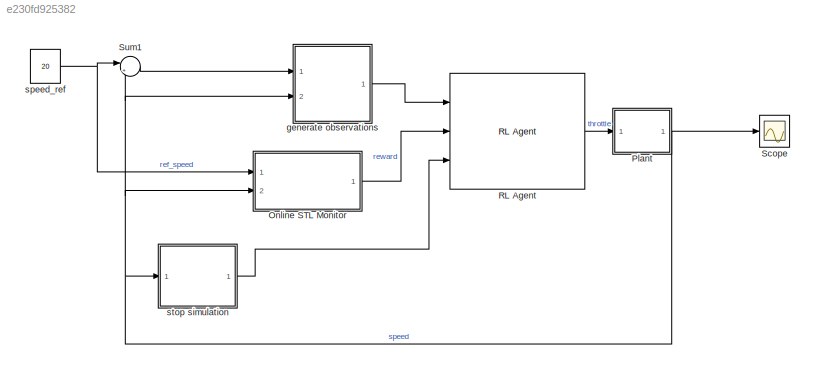
MODEL slx_e230fd925382
KIND model
CONFIG AbsTol = auto
CONFIG EnableMultiTasking = off
CONFIG FixedStep = 0.1
CONFIG MaxStep = auto
CONFIG MinStep = auto
CONFIG RelTol = 1e-3
CONFIG SampleTimeConstraint = Unconstrained
CONFIG SolverName = FixedStepAuto
CONFIG StartTime = 0.0
CONFIG StopTime = Tf
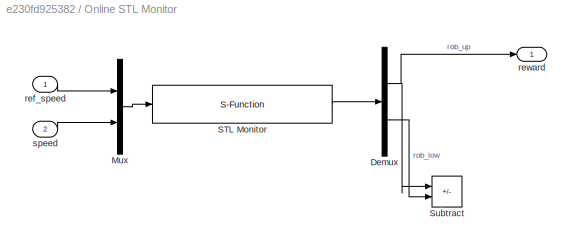
BLOCK [SubSystem] Online STL Monitor
  Ports = [2, 1]
  RequestExecContextInheritance = off
BLOCK [Demux] Online STL Monitor/Demux
  Outputs = 2
  Ports = [1, 2]
BLOCK [Mux] Online STL Monitor/Mux
  DisplayOption = bar
  Inputs = 2
  Ports = [2, 1]
BLOCK [S-Function] Online STL Monitor/STL Monitor
  EnableBusSupport = off
  FunctionName = onlineMonitorWrapper
  Parameters = SignalNames, STLString, MaxRob,RefreshRate
  Ports = [1, 1]
  SFcnIsStateOwnerBlock = off
  SFunctionDeploymentMode = off
BLOCK [Sum] Online STL Monitor/Subtract
  IconShape = rectangular
  Inputs = +-
  Ports = [2, 1]
BLOCK [Inport] Online STL Monitor/ref_speed
BLOCK [Outport] Online STL Monitor/reward
BLOCK [Inport] Online STL Monitor/speed
  Port = 2
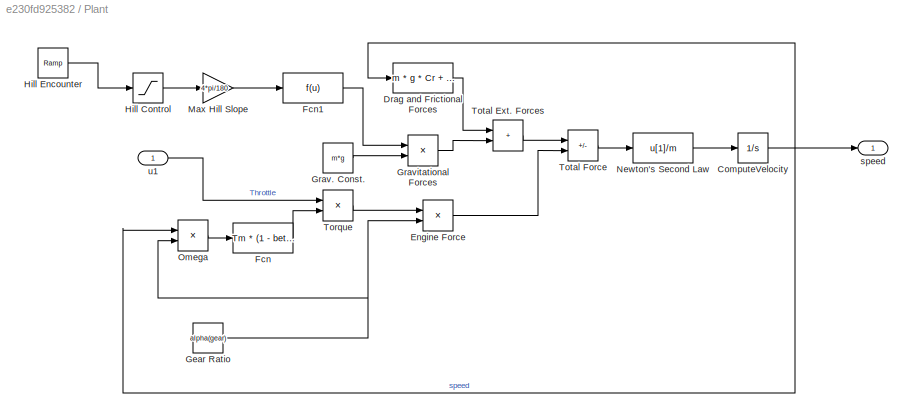
BLOCK [SubSystem] Plant
  Ports = [1, 1]
  RequestExecContextInheritance = off
BLOCK [Integrator] Plant/ComputeVelocity
  InitialCondition = 10
  Ports = [1, 1]
BLOCK [Fcn] Plant/Drag and Frictional Forces
  Expr = m * g * Cr + 0.5 * rho * Cd * A * (u[1])^2
BLOCK [Product] Plant/Engine Force
  Inputs = **
  Ports = [2, 1]
BLOCK [Fcn] Plant/Fcn
  Expr = Tm * (1 - beta * (u[1]/wm - 1)^2)
BLOCK [Fcn] Plant/Fcn1
BLOCK [Constant] Plant/Gear Ratio
  Value = alpha(gear)
BLOCK [Constant] Plant/Grav. Const.
  Value = m*g
BLOCK [Product] Plant/Gravitational Forces
  Ports = [2, 1]
  RndMeth = Zero
BLOCK [Saturate] Plant/Hill Control
  LowerLimit = 0
  UpperLimit = 1
BLOCK [Reference] Plant/Hill Encounter  REF=simulink/Sources/Ramp
  Ports = [0, 1]
  SourceBlock = simulink/Sources/Ramp
  SourceProductBaseCode = SL
  SourceType = Ramp
BLOCK [Gain] Plant/Max Hill Slope
  Gain = 4*pi/180
BLOCK [Fcn] Plant/Newton's Second Law
  Expr = u[1]/m
BLOCK [Product] Plant/Omega
  Ports = [2, 1]
  RndMeth = Zero
BLOCK [Product] Plant/Torque
  Ports = [2, 1]
  RndMeth = Zero
BLOCK [Sum] Plant/Total Ext. Forces
  IconShape = rectangular
  Ports = [2, 1]
BLOCK [Sum] Plant/Total Force
  IconShape = rectangular
  Inputs = -+
  Ports = [2, 1]
BLOCK [Outport] Plant/speed
BLOCK [Inport] Plant/u1
BLOCK [Reference] RL Agent  REF=rllib/RL Agent
  Ports = [3, 1]
  SourceBlock = rllib/RL Agent
  SourceProductBaseCode = RL
  SourceType = RL Agent
BLOCK [Scope] Scope
  Floating = off
  NumInputPorts = 1
  Ports = [1]
  ScopeSpecificationString = Simulink.scopes.TimeScopeBlockCfg('CurrentConfiguration', extmgr.ConfigurationSet(extmgr.Configuration('Core','General UI',true),extmgr.Configuration('Core','Source UI',true),extmgr.Configuration('Sources','WiredSimulink',true),extmgr.Configuration('Visuals','Time Domain',true),extmgr.Configuration('Tools','Plot Navigation',true),extmgr.Configuration('Tools','Measurements',true)),'Version','2020a'...<+1ch>
BLOCK [Sum] Sum1
  Inputs = |+-
  Ports = [2, 1]
  SaturateOnIntegerOverflow = on
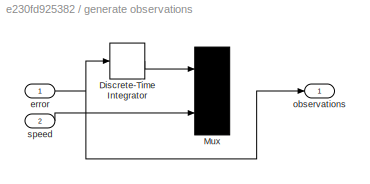
BLOCK [SubSystem] generate observations
  Ports = [2, 1]
  RequestExecContextInheritance = off
BLOCK [DiscreteIntegrator] generate observations/Discrete-Time Integrator
  ICPrevOutput = DiscIntNeverNeededParam
  ICPrevScaledInput = DiscIntNeverNeededParam
  InitialConditionSetting = Auto
  Ports = [1, 1]
  SampleTime = Ts
BLOCK [Mux] generate observations/Mux
  DisplayOption = bar
  Inputs = 3
  Ports = [3, 1]
BLOCK [Inport] generate observations/error
BLOCK [Outport] generate observations/observations
  VectorParamsAs1DForOutWhenUnconnected = off
BLOCK [Inport] generate observations/speed
  Port = 2
BLOCK [Constant] speed_ref
  Value = 20
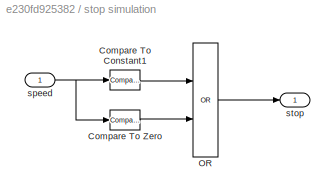
BLOCK [SubSystem] stop simulation
  Ports = [1, 1]
  RequestExecContextInheritance = off
BLOCK [Reference] stop simulation/Compare To Constant1  REF=simulink/Logic and Bit
Operations/Compare
To Constant
  Ports = [1, 1]
  SourceBlock = simulink/Logic and Bit\nOperations/Compare\nTo Constant
  SourceProductBaseCode = SL
  SourceType = Compare To Constant
BLOCK [Reference] stop simulation/Compare To Zero  REF=simulink/Logic and Bit
Operations/Compare
To Zero
  Ports = [1, 1]
  SourceBlock = simulink/Logic and Bit\nOperations/Compare\nTo Zero
  SourceProductBaseCode = SL
  SourceType = Compare To Zero
BLOCK [Logic] stop simulation/OR
  AllPortsSameDT = off
  IconShape = distinctive
  Operator = OR
  OutDataTypeStr = boolean
  Ports = [2, 1]
BLOCK [Inport] stop simulation/speed
BLOCK [Outport] stop simulation/stop
  VectorParamsAs1DForOutWhenUnconnected = off
NET Online STL Monitor/Demux:1 -> Online STL Monitor/Subtract:1, Online STL Monitor/reward:1
LINE Online STL Monitor/Demux:2 -> Online STL Monitor/Subtract:2
LINE Online STL Monitor/Mux:1 -> Online STL Monitor/STL Monitor:1
LINE Online STL Monitor/STL Monitor:1 -> Online STL Monitor/Demux:1
LINE Online STL Monitor/ref_speed:1 -> Online STL Monitor/Mux:1
LINE Online STL Monitor/speed:1 -> Online STL Monitor/Mux:2
LINE Online STL Monitor:1 -> RL Agent:2
NET Plant/ComputeVelocity:1 -> Plant/Drag and Frictional Forces:1, Plant/Omega:1, Plant/speed:1
LINE Plant/Drag and Frictional Forces:1 -> Plant/Total Ext. Forces:1
LINE Plant/Engine Force:1 -> Plant/Total Force:2
LINE Plant/Fcn1:1 -> Plant/Gravitational Forces:1
LINE Plant/Fcn:1 -> Plant/Torque:2
NET Plant/Gear Ratio:1 -> Plant/Engine Force:2, Plant/Omega:2
LINE Plant/Grav. Const.:1 -> Plant/Gravitational Forces:2
LINE Plant/Gravitational Forces:1 -> Plant/Total Ext. Forces:2
LINE Plant/Hill Control:1 -> Plant/Max Hill Slope:1
LINE Plant/Hill Encounter:1 -> Plant/Hill Control:1
LINE Plant/Max Hill Slope:1 -> Plant/Fcn1:1
LINE Plant/Newton's Second Law:1 -> Plant/ComputeVelocity:1
LINE Plant/Omega:1 -> Plant/Fcn:1
LINE Plant/Torque:1 -> Plant/Engine Force:1
LINE Plant/Total Ext. Forces:1 -> Plant/Total Force:1
LINE Plant/Total Force:1 -> Plant/Newton's Second Law:1
LINE Plant/u1:1 -> Plant/Torque:1
NET Plant:1 -> Online STL Monitor:2, Scope:1, Sum1:2, generate observations:2, stop simulation:1
LINE RL Agent:1 -> Plant:1
LINE Sum1:1 -> generate observations:1
LINE generate observations/Discrete-Time Integrator:1 -> generate observations/Mux:1
NET generate observations/error:1 -> generate observations/Discrete-Time Integrator:1, generate observations/observations:1
LINE generate observations/speed:1 -> generate observations/Mux:3
LINE generate observations:1 -> RL Agent:1
NET speed_ref:1 -> Online STL Monitor:1, Sum1:1
LINE stop simulation/Compare To Constant1:1 -> stop simulation/OR:1
LINE stop simulation/Compare To Zero:1 -> stop simulation/OR:2
LINE stop simulation/OR:1 -> stop simulation/stop:1
NET stop simulation/speed:1 -> stop simulation/Compare To Constant1:1, stop simulation/Compare To Zero:1
LINE stop simulation:1 -> RL Agent:3
note: NET lines group one-source signal fan-out (src -> all destinations, sorted); 1:1 wires keep LINE
